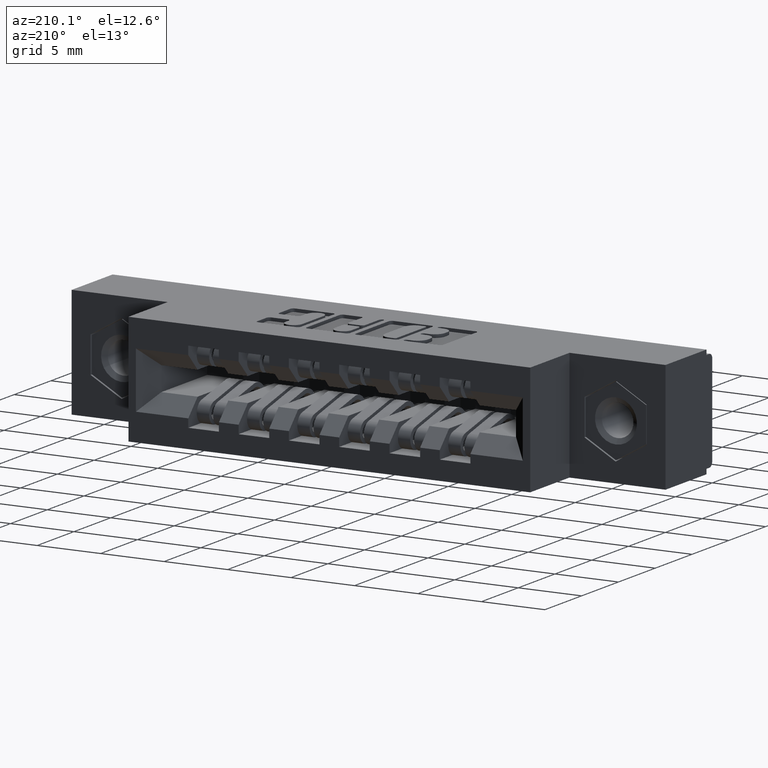
[diagram: clean part render]
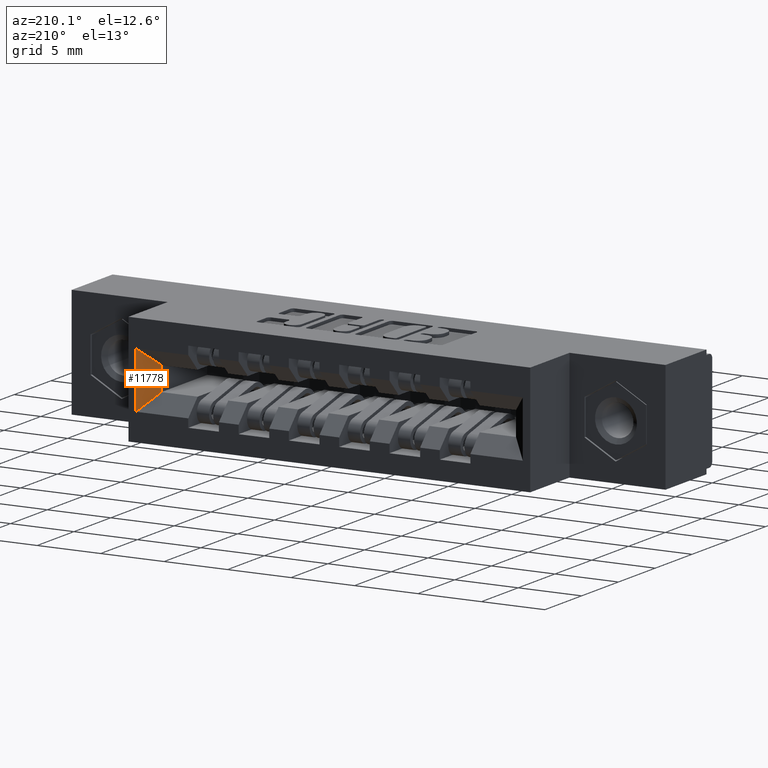
[diagram: same view with one face highlighted and labeled with its STEP entity id]
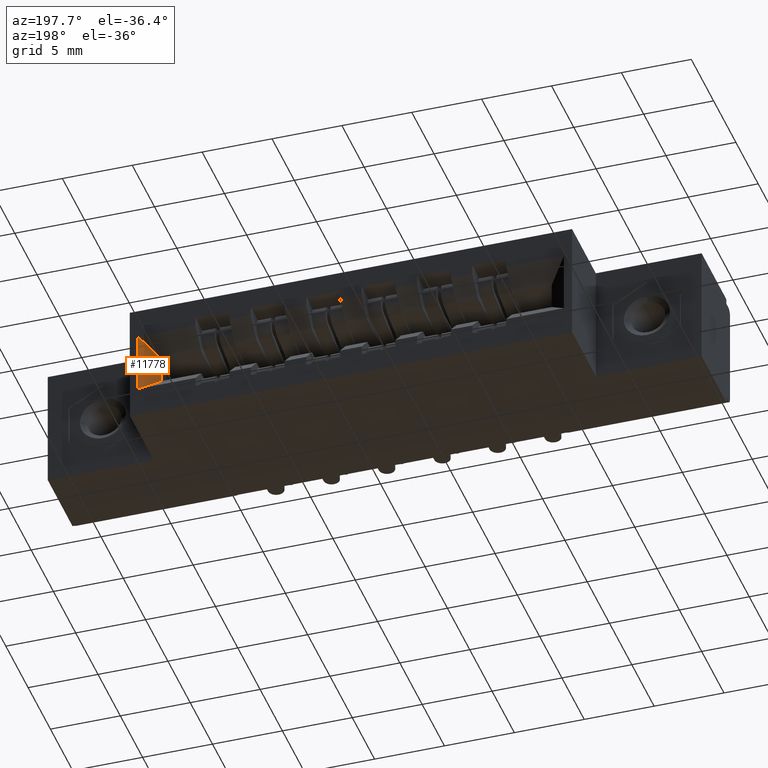
[diagram: same view with one face highlighted and labeled with its STEP entity id]
A machine part, auxiliary view. The second image highlights one B-rep face of the part: STEP entity #11778.
A second angle (auxiliary view) of the same face is appended — the face is thin or edge-on in the first view.
In plain terms, the highlighted planar face has unit normal (0.7071, -0.7071, 0).
Its self-contained STEP definition (entity closure, byte-faithful):
#211 = VERTEX_POINT ( 'NONE', #7379 ) ;
#1298 = ORIENTED_EDGE ( 'NONE', *, *, #3848, .T. ) ;
#1532 = CARTESIAN_POINT ( 'NONE',  ( 1.471000000000001900, 0.4100000000000002500, -0.2085000000000003500 ) ) ;
#1571 = PLANE ( 'NONE',  #9096 ) ;
#2165 = CARTESIAN_POINT ( 'NONE',  ( 1.471000000000001900, 0.4100000000000002500, -0.1345000000000003700 ) ) ;
#2191 = EDGE_LOOP ( 'NONE', ( #3197, #9870, #1298, #2434 ) ) ;
#2434 = ORIENTED_EDGE ( 'NONE', *, *, #9089, .F. ) ;
#3197 = ORIENTED_EDGE ( 'NONE', *, *, #5482, .T. ) ;
#3306 = VECTOR ( 'NONE', #10001, 39.37007874015748100 ) ;
#3848 = EDGE_CURVE ( 'NONE', #6449, #10069, #9158, .T. ) ;
#3936 = LINE ( 'NONE', #8737, #7255 ) ;
#4281 = LINE ( 'NONE', #11820, #4560 ) ;
#4560 = VECTOR ( 'NONE', #10817, 39.37007874015748100 ) ;
#4735 = LINE ( 'NONE', #5516, #3306 ) ;
#5482 = EDGE_CURVE ( 'NONE', #10438, #211, #3936, .T. ) ;
#5516 = CARTESIAN_POINT ( 'NONE',  ( 1.521000000000001900, 0.4600000000000000200, -0.3430000000000000300 ) ) ;
#5635 = FACE_OUTER_BOUND ( 'NONE', #2191, .T. ) ;
#5688 = CARTESIAN_POINT ( 'NONE',  ( 1.471000000000001900, 0.4100000000000002500, -0.2085000000000003500 ) ) ;
#6259 = DIRECTION ( 'NONE',  ( 0.7071067811865455700, -0.7071067811865494600, 0.0000000000000000000 ) ) ;
#6449 = VERTEX_POINT ( 'NONE', #11152 ) ;
#6911 = DIRECTION ( 'NONE',  ( 0.5773502691896268400, 0.5773502691896236200, 0.5773502691896268400 ) ) ;
#6991 = DIRECTION ( 'NONE',  ( 0.7071067811865493500, 0.7071067811865454600, 0.0000000000000000000 ) ) ;
#7255 = VECTOR ( 'NONE', #6911, 39.37007874015748100 ) ;
#7379 = CARTESIAN_POINT ( 'NONE',  ( 1.521000000000001900, 0.4600000000000000200, -0.08450000000000035300 ) ) ;
#7673 = EDGE_CURVE ( 'NONE', #6449, #211, #4735, .T. ) ;
#8145 = CARTESIAN_POINT ( 'NONE',  ( 1.471000000000001900, 0.4100000000000002500, -0.2085000000000003500 ) ) ;
#8737 = CARTESIAN_POINT ( 'NONE',  ( 1.446333333333335000, 0.3853333333333336900, -0.1591666666666671200 ) ) ;
#8750 = VECTOR ( 'NONE', #9781, 39.37007874015748100 ) ;
#9089 = EDGE_CURVE ( 'NONE', #10438, #10069, #4281, .T. ) ;
#9096 = AXIS2_PLACEMENT_3D ( 'NONE', #1532, #6259, #6991 ) ;
#9158 = LINE ( 'NONE', #8145, #8750 ) ;
#9781 = DIRECTION ( 'NONE',  ( -0.5773502691896268400, -0.5773502691896236200, 0.5773502691896268400 ) ) ;
#9870 = ORIENTED_EDGE ( 'NONE', *, *, #7673, .F. ) ;
#10001 = DIRECTION ( 'NONE',  ( 0.0000000000000000000, 0.0000000000000000000, 1.000000000000000000 ) ) ;
#10069 = VERTEX_POINT ( 'NONE', #5688 ) ;
#10438 = VERTEX_POINT ( 'NONE', #2165 ) ;
#10817 = DIRECTION ( 'NONE',  ( 0.0000000000000000000, 0.0000000000000000000, -1.000000000000000000 ) ) ;
#11152 = CARTESIAN_POINT ( 'NONE',  ( 1.521000000000001900, 0.4600000000000000200, -0.2585000000000003400 ) ) ;
#11778 = ADVANCED_FACE ( 'NONE', ( #5635 ), #1571, .F. ) ;
#11820 = CARTESIAN_POINT ( 'NONE',  ( 1.471000000000001900, 0.4100000000000002500, -0.2085000000000003500 ) ) ;